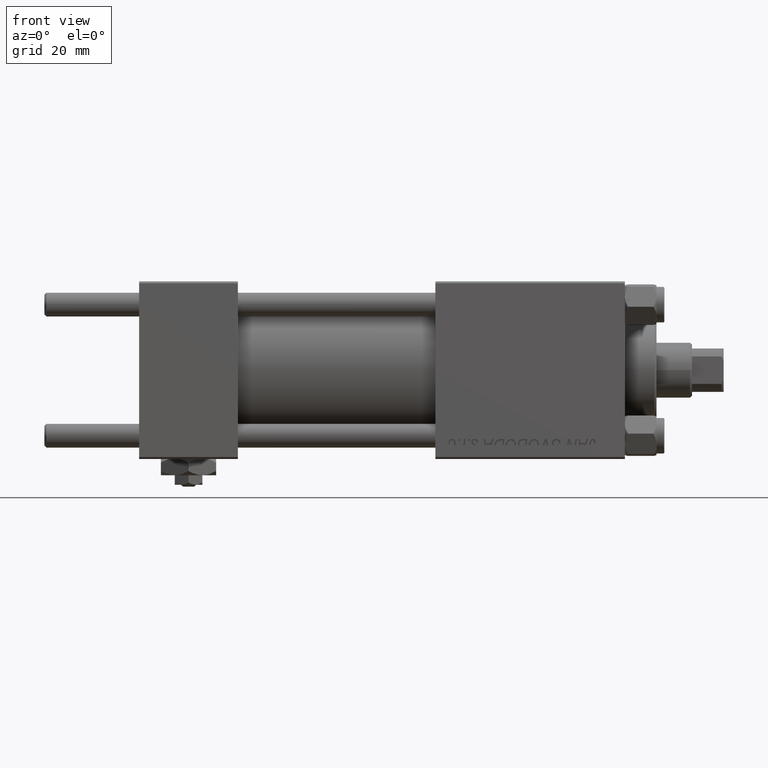
[diagram: clean part render]
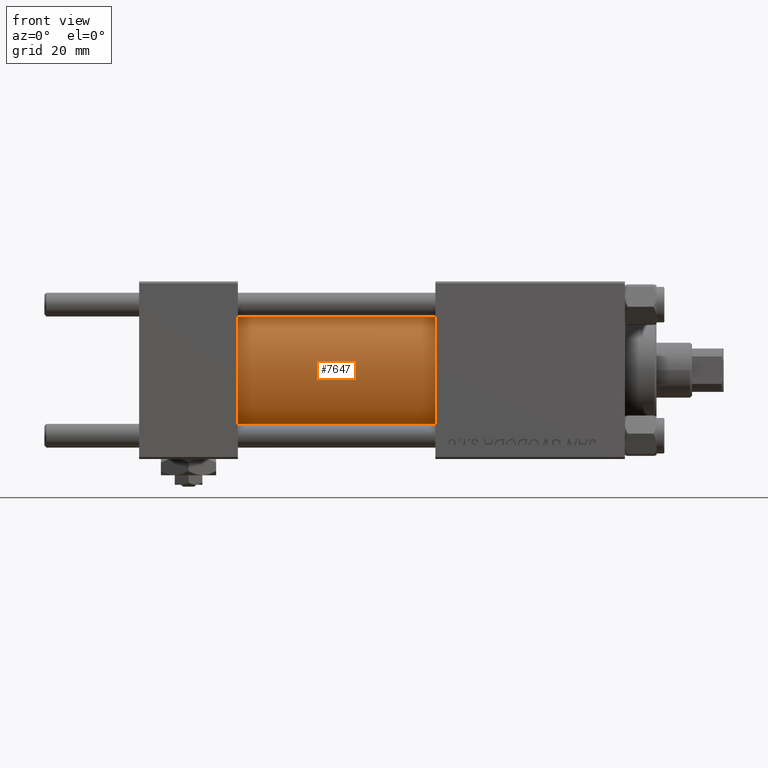
[diagram: same view with one face highlighted and labeled with its STEP entity id]
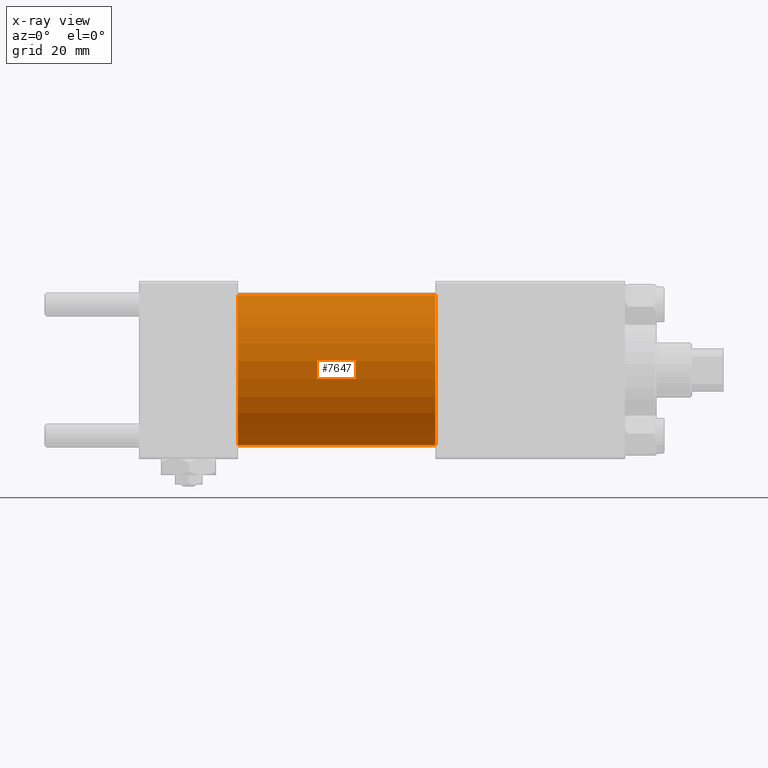
[diagram: x-ray of the same camera — body ghosted, the highlighted face saturated]
A machine part, front view. The second image highlights one B-rep face of the part: STEP entity #7647.
The next image is the same camera in x-ray: the body ghosted, the highlighted face saturated — about 0% of this face is hidden behind the body in this view.
In plain terms, the highlighted cylindrical surface (partial cylindrical patch) has radius 19 mm, axis along (-1, -0, -0).
Its self-contained STEP definition (entity closure, byte-faithful):
#2122 = CARTESIAN_POINT ( 'NONE',  ( 25.00000000000000000, 2.326828918379970970E-15, -19.00000000000000000 ) ) ;
#3614 = CARTESIAN_POINT ( 'NONE',  ( 25.00000000000000000, 0.000000000000000000, 0.000000000000000000 ) ) ;
#5301 = DIRECTION ( 'NONE',  ( 0.000000000000000000, 0.000000000000000000, 1.000000000000000000 ) ) ;
#5568 = CYLINDRICAL_SURFACE ( 'NONE', #49601, 19.00000000000000000 ) ;
#6941 = EDGE_CURVE ( 'NONE', #40725, #33119, #51505, .T. ) ;
#7647 = ADVANCED_FACE ( 'NONE', ( #32787 ), #5568, .T. ) ;
#10751 = VECTOR ( 'NONE', #38050, 1000.000000000000000 ) ;
#12930 = ORIENTED_EDGE ( 'NONE', *, *, #6941, .T. ) ;
#15266 = LINE ( 'NONE', #19195, #10751 ) ;
#15678 = AXIS2_PLACEMENT_3D ( 'NONE', #3614, #15905, #23769 ) ;
#15905 = DIRECTION ( 'NONE',  ( 1.000000000000000000, -0.000000000000000000, 0.000000000000000000 ) ) ;
#16310 = VERTEX_POINT ( 'NONE', #18461 ) ;
#18461 = CARTESIAN_POINT ( 'NONE',  ( 75.00000000000001421, 2.326828918379970970E-15, -19.00000000000000000 ) ) ;
#19195 = CARTESIAN_POINT ( 'NONE',  ( 75.00000000000001421, 2.326828918379970970E-15, -19.00000000000000000 ) ) ;
#19931 = CARTESIAN_POINT ( 'NONE',  ( 75.00000000000001421, 0.000000000000000000, 0.000000000000000000 ) ) ;
#21018 = DIRECTION ( 'NONE',  ( -1.000000000000000000, -0.000000000000000000, -0.000000000000000000 ) ) ;
#21565 = CIRCLE ( 'NONE', #15678, 19.00000000000000000 ) ;
#23769 = DIRECTION ( 'NONE',  ( 0.000000000000000000, 0.000000000000000000, 1.000000000000000000 ) ) ;
#23912 = CIRCLE ( 'NONE', #44763, 19.00000000000000000 ) ;
#25774 = ORIENTED_EDGE ( 'NONE', *, *, #49961, .F. ) ;
#26167 = VECTOR ( 'NONE', #50472, 1000.000000000000000 ) ;
#27754 = CARTESIAN_POINT ( 'NONE',  ( 75.00000000000001421, 0.000000000000000000, 19.00000000000000000 ) ) ;
#28863 = CARTESIAN_POINT ( 'NONE',  ( 75.00000000000001421, 0.000000000000000000, 0.000000000000000000 ) ) ;
#32149 = ORIENTED_EDGE ( 'NONE', *, *, #47094, .T. ) ;
#32787 = FACE_OUTER_BOUND ( 'NONE', #46305, .T. ) ;
#33119 = VERTEX_POINT ( 'NONE', #47484 ) ;
#35875 = DIRECTION ( 'NONE',  ( 0.000000000000000000, 0.000000000000000000, -1.000000000000000000 ) ) ;
#36907 = VERTEX_POINT ( 'NONE', #2122 ) ;
#38050 = DIRECTION ( 'NONE',  ( -1.000000000000000000, -0.000000000000000000, -0.000000000000000000 ) ) ;
#38708 = ORIENTED_EDGE ( 'NONE', *, *, #43060, .F. ) ;
#40725 = VERTEX_POINT ( 'NONE', #27754 ) ;
#43060 = EDGE_CURVE ( 'NONE', #40725, #16310, #23912, .T. ) ;
#44763 = AXIS2_PLACEMENT_3D ( 'NONE', #19931, #48440, #35875 ) ;
#46305 = EDGE_LOOP ( 'NONE', ( #25774, #38708, #12930, #32149 ) ) ;
#47094 = EDGE_CURVE ( 'NONE', #33119, #36907, #21565, .T. ) ;
#47484 = CARTESIAN_POINT ( 'NONE',  ( 25.00000000000000000, 0.000000000000000000, 19.00000000000000000 ) ) ;
#47584 = CARTESIAN_POINT ( 'NONE',  ( 75.00000000000001421, 0.000000000000000000, 19.00000000000000000 ) ) ;
#48440 = DIRECTION ( 'NONE',  ( 1.000000000000000000, 0.000000000000000000, 0.000000000000000000 ) ) ;
#49601 = AXIS2_PLACEMENT_3D ( 'NONE', #28863, #21018, #5301 ) ;
#49961 = EDGE_CURVE ( 'NONE', #16310, #36907, #15266, .T. ) ;
#50472 = DIRECTION ( 'NONE',  ( -1.000000000000000000, -0.000000000000000000, -0.000000000000000000 ) ) ;
#51505 = LINE ( 'NONE', #47584, #26167 ) ;